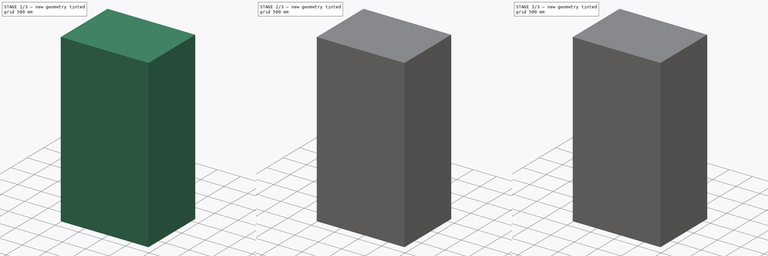
[diagram: build sequence overview — one tinted view per stage of 3, left to right]
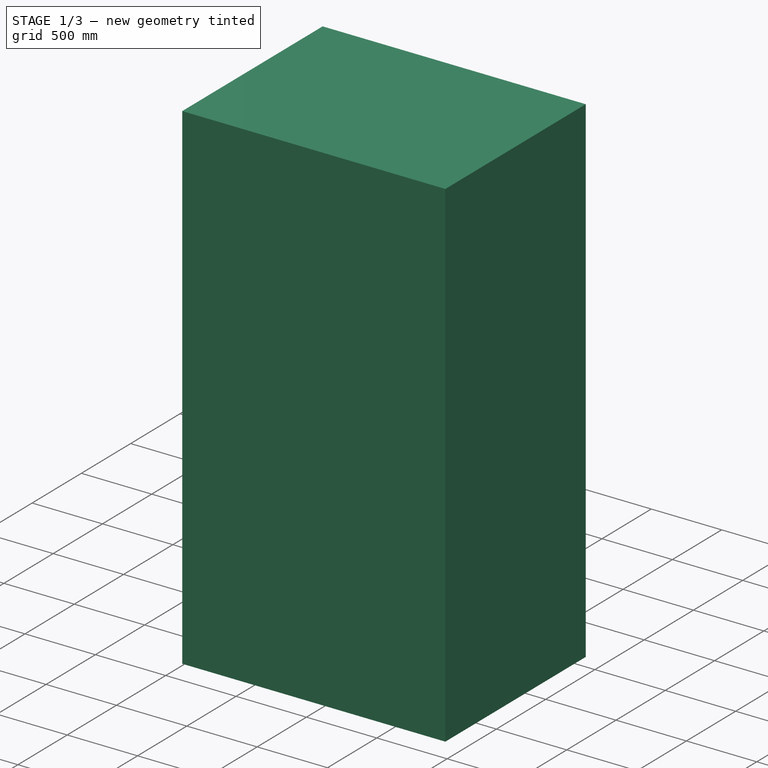
[diagram: stage 1 of 3 — iso view after this stage's code; geometry added in this stage tinted green]
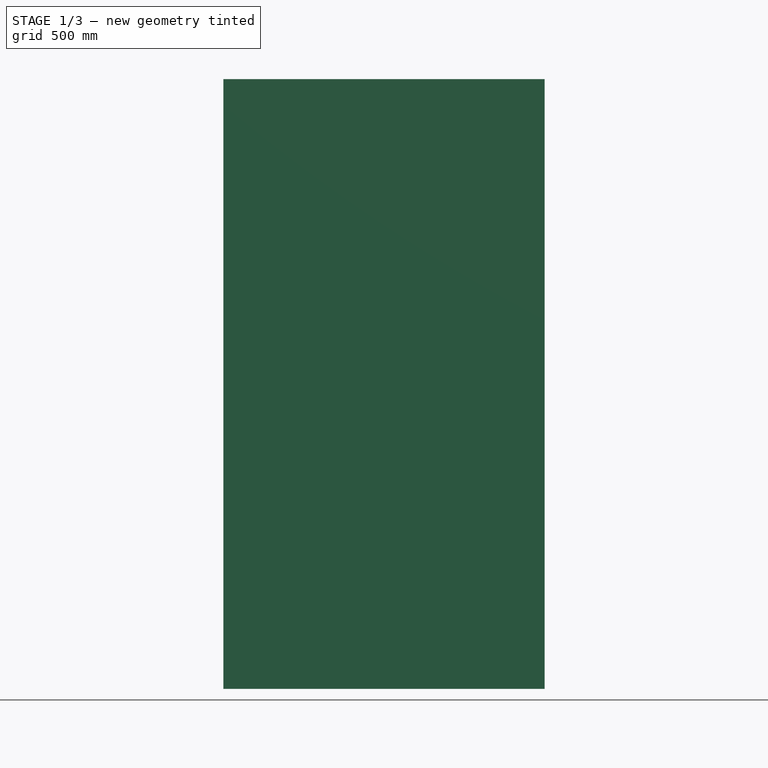
[diagram: stage 1 of 3 — front view after this stage's code; geometry added in this stage tinted green]
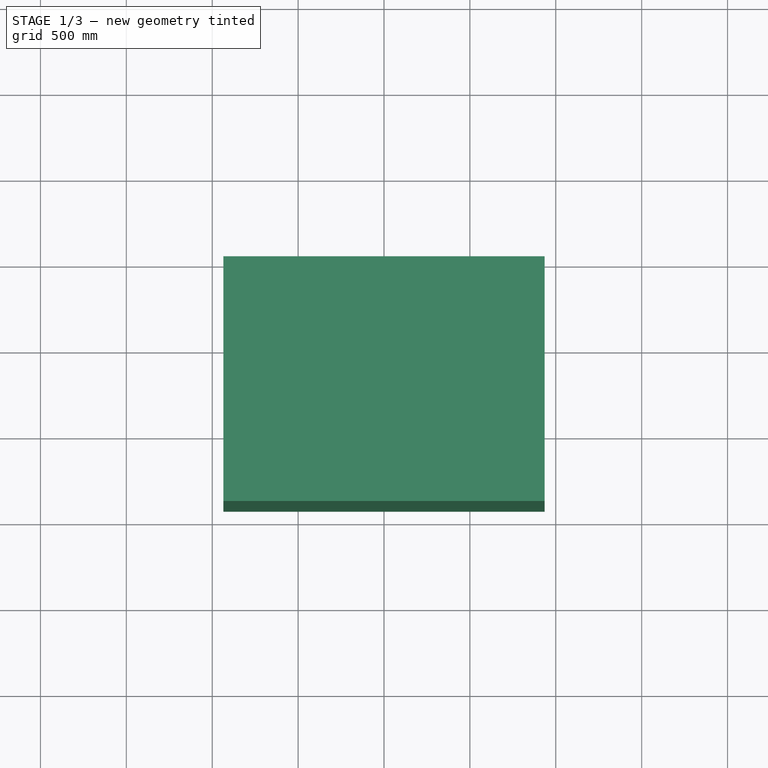
[diagram: stage 1 of 3 — top view after this stage's code; geometry added in this stage tinted green]
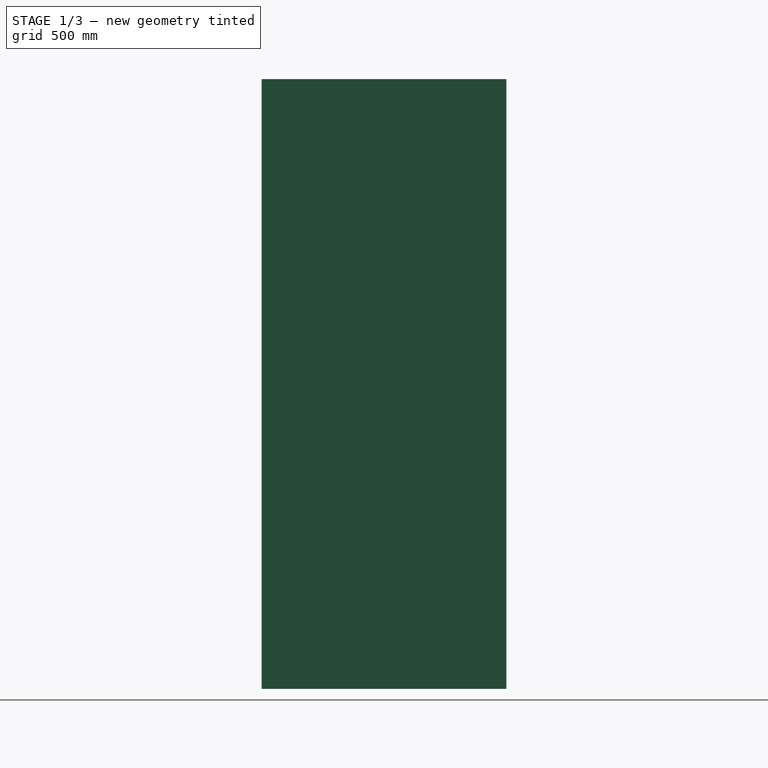
[diagram: stage 1 of 3 — right view after this stage's code; geometry added in this stage tinted green]
FCSTD DOCUMENT  (FreeCAD 1.1R41152 (Git))
Label: balcon
License: All rights reserved
LicenseURL: https://en.wikipedia.org/wiki/All_rights_reserved
objects: Sketcher::SketchObject×4, App::Point×2, PartDesign::Body×2, PartDesign::Pad×2, PartDesign::Pocket×2, PartDesign::SubShapeBinder×1, PartDesign::SubtractiveBox×1
note: 26 computed .brp shape members not serialized (recipe doc carries the construction recipe); baked Part::Feature solids carry a one-line shape summary decoded from their .brp

FEATURE [App::Point] Origin001  label="Начало координат"
  Role = Origin
FEATURE [Sketcher::SketchObject] Sketch  label="Боковой вид"
  ArcFitTolerance = 1e-06
  AttachmentSupport = -> [XZ_Plane]
  ExternalTypes = [0]
  FullyConstrained = false
  MakeInternals = false
  MapMode = 5
  Placement = pos=(0,0,0) rot=(1,0,0;1.5708rad)
  sketch-geometry (11):
    g0: LineSegment StartX=-543.175 StartY=-283.768 StartZ=0 EndX=-413.175 EndY=-283.768 EndZ=0
    g1: LineSegment StartX=-413.175 StartY=-283.768 StartZ=0 EndX=-413.175 EndY=-315.768 EndZ=0
    g2: LineSegment StartX=-413.175 StartY=-315.768 StartZ=0 EndX=-543.175 EndY=-315.768 EndZ=0
    g3: LineSegment StartX=-543.175 StartY=-315.768 StartZ=0 EndX=-543.175 EndY=-1215.77 EndZ=0
    g4: LineSegment StartX=-543.175 StartY=-1215.77 StartZ=0 EndX=726.825 EndY=-1215.77 EndZ=0
    g5: LineSegment StartX=726.825 StartY=-1215.77 StartZ=0 EndX=726.825 EndY=1734.23 EndZ=0
    g6: LineSegment StartX=726.825 StartY=1734.23 StartZ=0 EndX=-543.175 EndY=1734.23 EndZ=0
    g7: LineSegment StartX=-543.175 StartY=1734.23 StartZ=0 EndX=-543.175 EndY=-283.768 EndZ=0
    g8: LineSegment StartX=726.825 StartY=246.232 StartZ=0 EndX=796.825 EndY=246.232 EndZ=0
    g9: LineSegment StartX=796.825 StartY=246.232 StartZ=0 EndX=796.825 EndY=-65.7685 EndZ=0
    g10: LineSegment StartX=796.825 StartY=-65.7685 StartZ=0 EndX=726.825 EndY=-65.7685 EndZ=0
  constraints (34):
    c: Coincident(g0,g1)
    c: Coincident(g1,g2)
    c: Coincident(g2,g3)
    c: Coincident(g3,g4)
    c: Coincident(g4,g5)
    c: Vertical(g5)
    c: Coincident(g5,g6)
    c: Coincident(g6,g7)
    c: Coincident(g7,g0)
    c: Vertical(g2,g0)
    c: Horizontal(g0)
    c: Vertical(g1)
    c: Horizontal(g2)
    c: Vertical(g3)
    c: Vertical(g7)
    c: Horizontal(g6)
    c: Horizontal(g4)
    c: DistanceY(g5,g5) = 2950  'H1'
    c: DistanceX(g0,g0) = 130
    c: DistanceY(g3,g3) = 900
    c: DistanceY(g1,g1) = 32
    c: PointOnObject(g8,g5)
    c: Coincident(g8,g9)
    c: Coincident(g9,g10)
    c: Horizontal(g8)
    c: Vertical(g9)
    c: PointOnObject(g10,g5)
    c: Horizontal(g10)
    c: DistanceY(g4,g9) = 1150
    c: DistanceY(g9,g9) = 312
    c: Distance(g8,g7) = 1270  'L1'
    c: DistanceX(g8,g8) = 70
    c: DistanceX(g0,g10) = 1140
    c: DistanceY(g7,g7) = 2018
FEATURE [PartDesign::Body] Body  label="Тело"
  AllowCompound = false
  Group = -> [Sketch]
  Origin = -> Origin
FEATURE [App::Point] Origin003  label="Начало координат002"
  Role = Origin
FEATURE [Sketcher::SketchObject] Sketch001
  ArcFitTolerance = 1e-06
  AttachmentSupport = -> [XZ_Plane001]
  ExternalTypes = [0]
  FullyConstrained = true
  MakeInternals = false
  MapMode = 5
  Placement = pos=(0,0,0) rot=(1,0,0;1.5708rad)
  sketch-geometry (11):
    g0: LineSegment StartX=-635 StartY=1475 StartZ=0 EndX=-635 EndY=-1475 EndZ=0
    g1: LineSegment StartX=-635 StartY=-1475 StartZ=0 EndX=635 EndY=-1475 EndZ=0
    g2: LineSegment StartX=635 StartY=-1475 StartZ=0 EndX=635 EndY=1475 EndZ=0
    g3: LineSegment StartX=635 StartY=1475 StartZ=0 EndX=-635 EndY=1475 EndZ=0
    g4: LineSegment StartX=-935 StartY=1775 StartZ=0 EndX=-935 EndY=-1775 EndZ=0
    g5: LineSegment StartX=-935 StartY=-1775 StartZ=0 EndX=935 EndY=-1775 EndZ=0
    g6: LineSegment StartX=935 StartY=-1775 StartZ=0 EndX=935 EndY=1775 EndZ=0
    g7: LineSegment StartX=935 StartY=1775 StartZ=0 EndX=-935 EndY=1775 EndZ=0
    g8: GeomPoint X=0 Y=0 Z=0
    g9: LineSegment [constr] StartX=-635 StartY=1475 StartZ=0 EndX=-935 EndY=1475 EndZ=0
    g10: LineSegment [constr] StartX=-635 StartY=1775 StartZ=0 EndX=-635 EndY=1475 EndZ=0
  constraints (29):
    c: Coincident(g0,g1)
    c: Coincident(g1,g2)
    c: Coincident(g2,g3)
    c: Coincident(g3,g0)
    c: Vertical(g0)
    c: Vertical(g2)
    c: Horizontal(g1)
    c: Horizontal(g3)
    c: DistanceY(g2,g2) = 2950
    c: DistanceX(g3,g3) = 1270
    c: Coincident(g4,g5)
    c: Coincident(g5,g6)
    c: Coincident(g6,g7)
    c: Coincident(g7,g4)
    c: Vertical(g4)
    c: Vertical(g6)
    c: Horizontal(g5)
    c: Horizontal(g7)
    c: Symmetric(g4,g5,g8)
    c: Symmetric(g0,g1,g8)
    c: Coincident(g8,g-1)
    c: Coincident(g0,g9)
    c: PointOnObject(g9,g4)
    c: PointOnObject(g10,g7)
    c: Coincident(g10,g0)
    c: Equal(g9,g10)
    c: Horizontal(g9)
    c: Vertical(g10)
    c: DistanceX(g9,g9) = 300
FEATURE [PartDesign::Pad] Pad
  Direction = (0,-1,2e-16)
  Length = 1425
  Length2 = 10
  Placement = pos=(0,0,0) rot=(1,0,0;1.5708rad)
  Profile = -> Sketch001
  ReferenceAxis = -> Sketch001 [N_Axis]
  Refine = true
  Suppressed = false
  Type = 0
FEATURE [PartDesign::SubShapeBinder] Binder
  BindCopyOnChange = 0
  BindMode = 0
  ClaimChildren = false
  Context = -> Body001 [Binder.]
  Fuse = false
  MakeFace = true
  OffsetFill = false
  OffsetIntersection = false
  OffsetJoinType = 0
  OffsetOpenResult = false
  PartialLoad = false
  Refine = true
  Relative = true
  Support = -> [Pad[Edge7,Edge10,Edge4,Edge12]]
  _Version = 2
FEATURE [PartDesign::Pad] Pad001
  BaseFeature = -> Pad
  Direction = (0,1,-3e-16)
  Length = 200
  Length2 = 10
  Placement = pos=(0,0,0) rot=(1,0,0;1.5708rad)
  Profile = -> Binder
  Refine = true
  Suppressed = false
  Type = 0
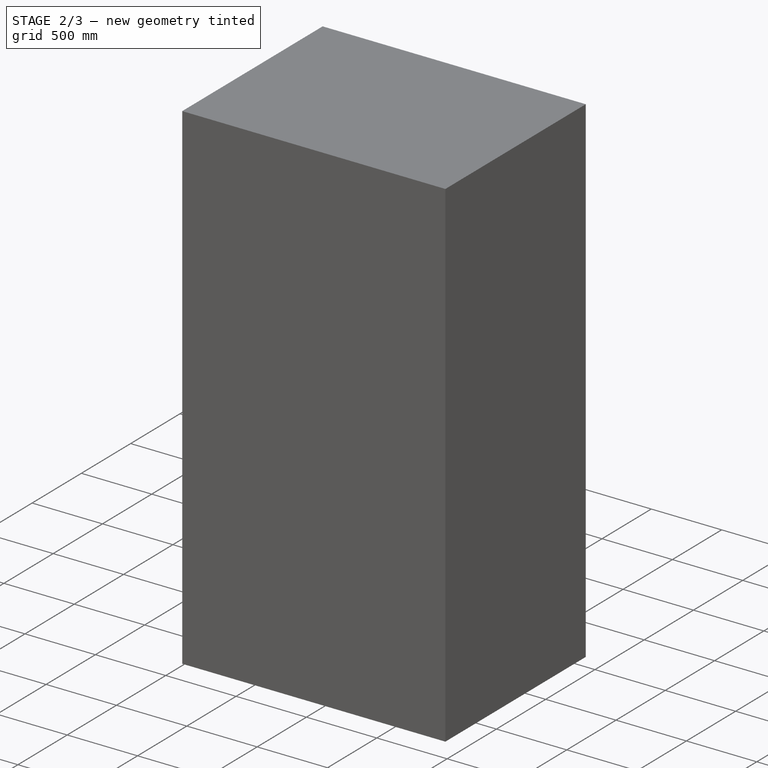
[diagram: stage 2 of 3 — iso view after this stage's code; geometry added in this stage tinted green]
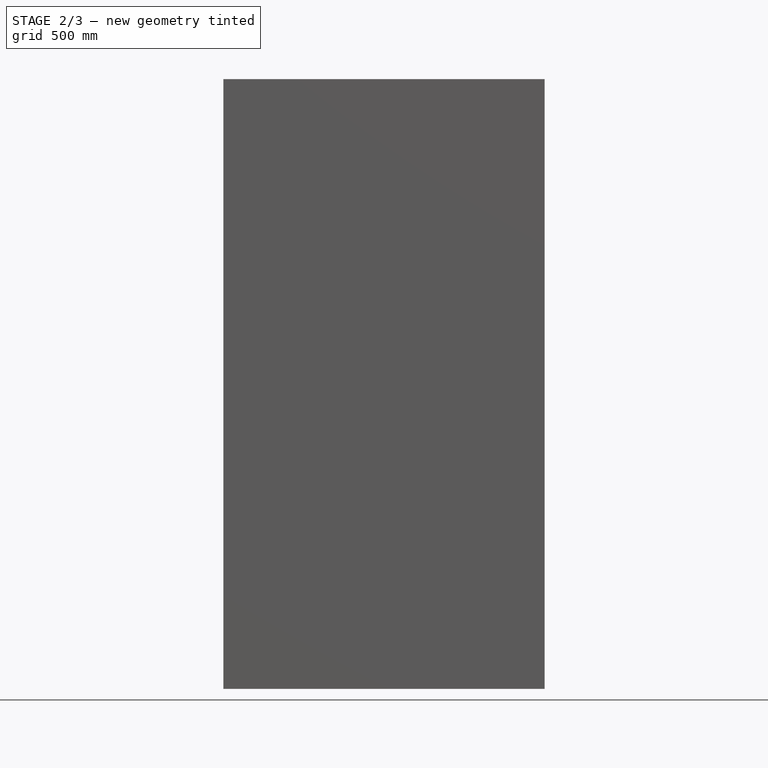
[diagram: stage 2 of 3 — front view after this stage's code; geometry added in this stage tinted green]
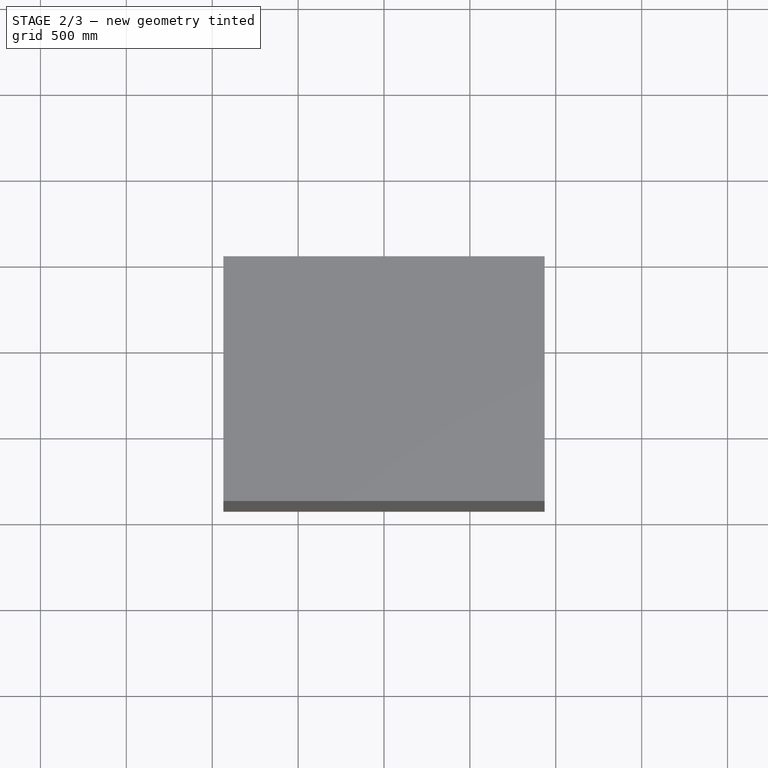
[diagram: stage 2 of 3 — top view after this stage's code; geometry added in this stage tinted green]
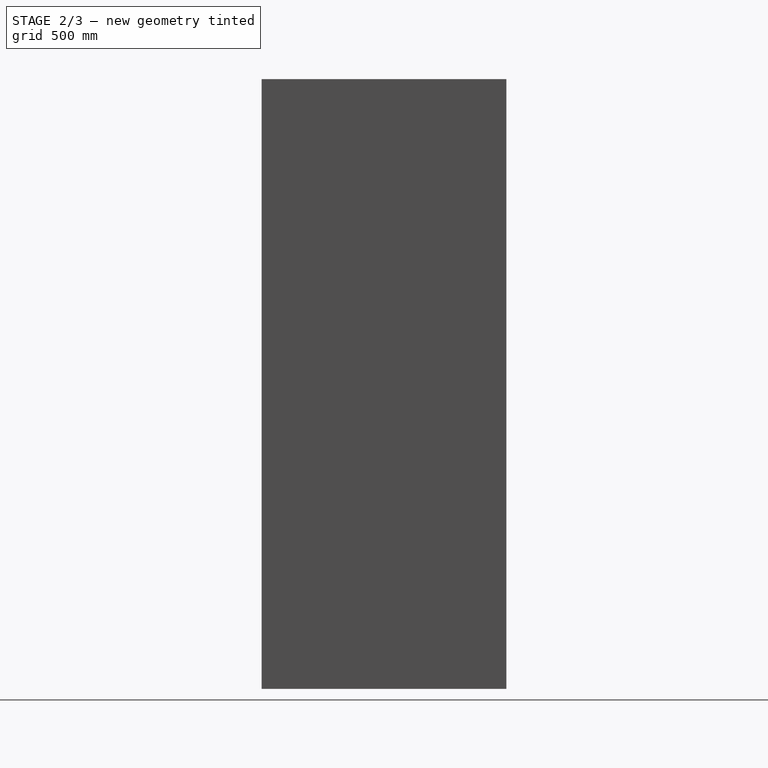
[diagram: stage 2 of 3 — right view after this stage's code; geometry added in this stage tinted green]
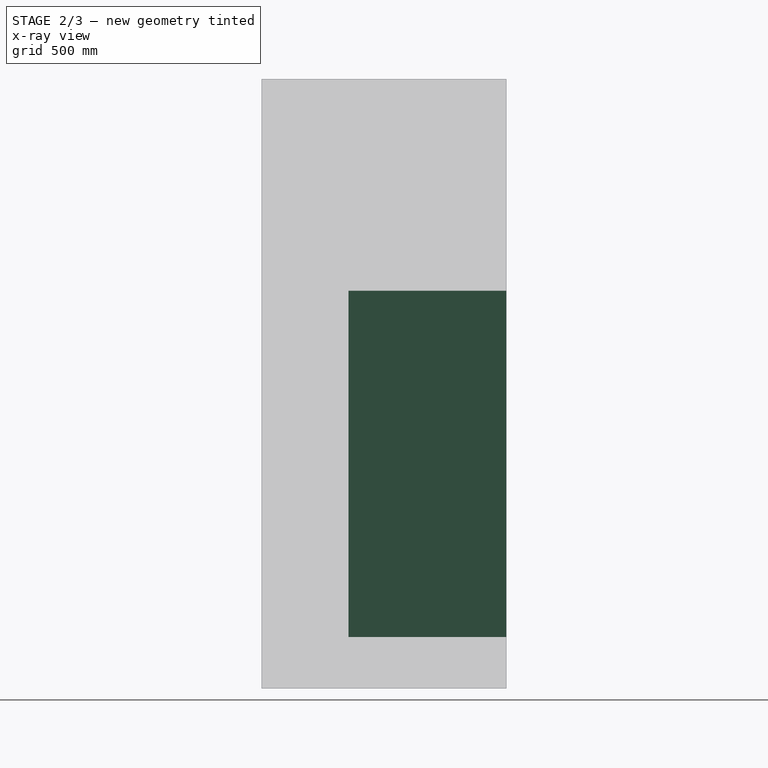
[diagram: stage 2 of 3 — x-ray composite at the right view; earlier geometry ghosted, this stage's added geometry solid]
FEATURE [Sketcher::SketchObject] Sketch002
  ArcFitTolerance = 1e-06
  AttachmentSupport = -> [Pad001]
  ExternalGeometry = -> [Pad001]
  ExternalTypes = [0]
  FullyConstrained = true
  MakeInternals = false
  MapMode = 5
  Placement = pos=(0,0,0) rot=(-1,0,0;1.5708rad)
  sketch-geometry (4):
    g0: LineSegment StartX=-635 StartY=1475 StartZ=0 EndX=-700 EndY=1475 EndZ=0
    g1: LineSegment StartX=-700 StartY=1475 StartZ=0 EndX=-700 EndY=-543 EndZ=0
    g2: LineSegment StartX=-700 StartY=-543 StartZ=0 EndX=-635 EndY=-543 EndZ=0
    g3: LineSegment StartX=-635 StartY=-543 StartZ=0 EndX=-635 EndY=1475 EndZ=0
  constraints (11):
    c: Coincident(g0,g1)
    c: Coincident(g1,g2)
    c: PointOnObject(g2,g-3)
    c: Horizontal(g2)
    c: Coincident(g2,g3)
    c: Coincident(g3,g0)
    c: Coincident(g0,g-3)
    c: Vertical(g1)
    c: Horizontal(g0)
    c: DistanceY(g1,g1) = 2018
    c: DistanceX(g0,g0) = 65
FEATURE [PartDesign::Pocket] Pocket
  BaseFeature = -> Pad001
  Direction = (0,-1,0)
  Length = 920
  Length2 = 5
  Placement = pos=(0,0,0) rot=(1,0,0;1.5708rad)
  Profile = -> Sketch002
  ReferenceAxis = -> Sketch002 [N_Axis]
  Refine = true
  Suppressed = false
  Type = 0
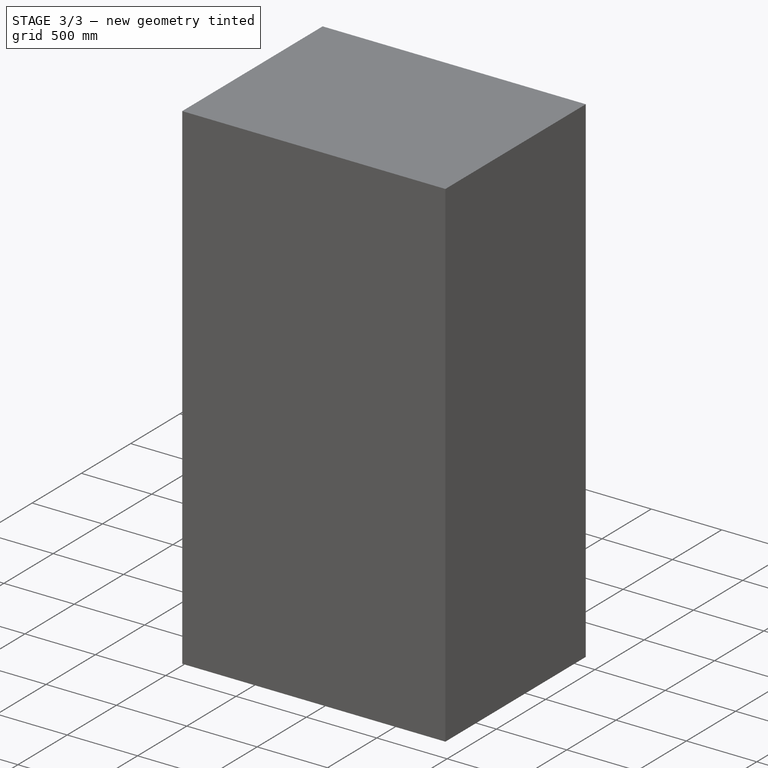
[diagram: stage 3 of 3 — iso view after this stage's code; geometry added in this stage tinted green]
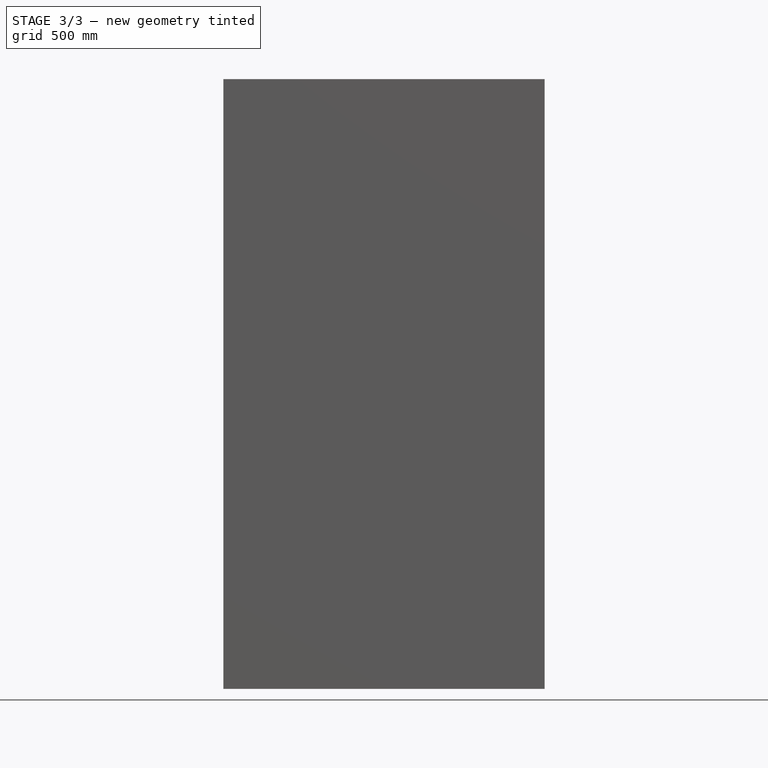
[diagram: stage 3 of 3 — front view after this stage's code; geometry added in this stage tinted green]
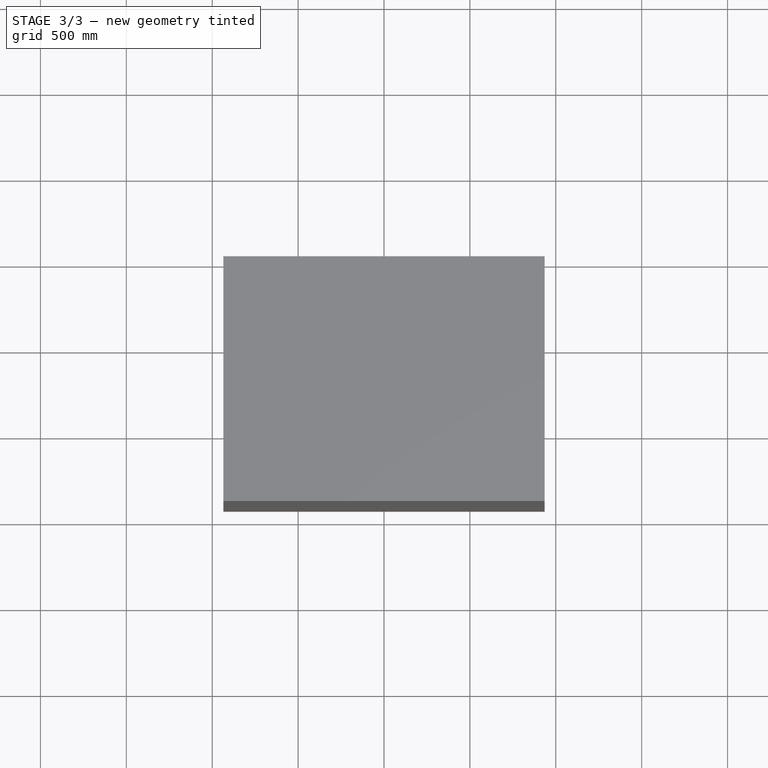
[diagram: stage 3 of 3 — top view after this stage's code; geometry added in this stage tinted green]
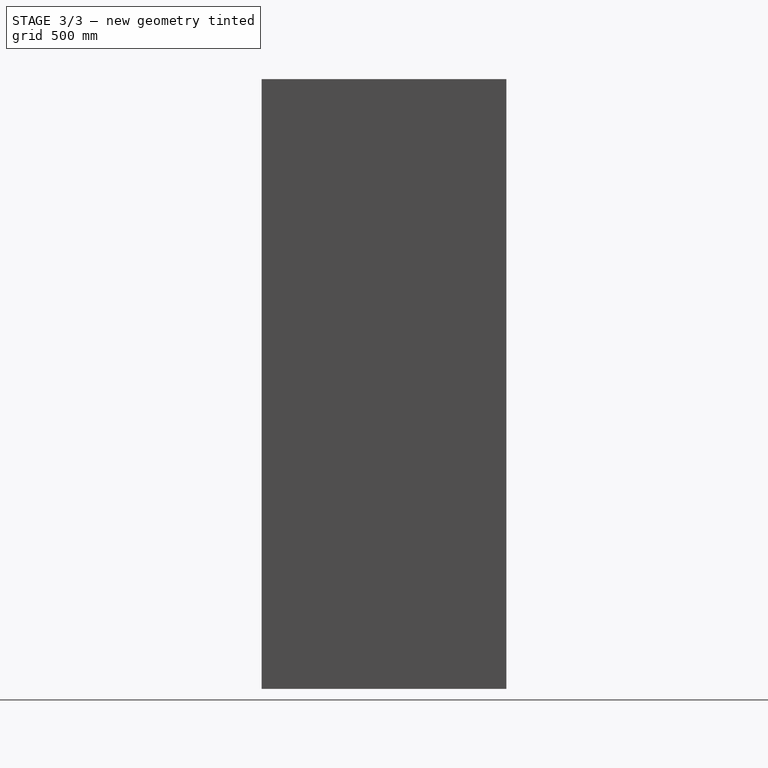
[diagram: stage 3 of 3 — right view after this stage's code; geometry added in this stage tinted green]
FEATURE [PartDesign::SubtractiveBox] Box
  AttacherType = Attacher::AttachEngine3D
  AttachmentOffset = pos=(0,535,-70) rot=(0,0,1;0rad)
  AttachmentSupport = -> [Pocket]
  BaseFeature = -> Pocket
  Height = 70
  Length = 290
  MapMode = 5
  Placement = pos=(705,-535,1.55e-14) rot=(0.707107,0,-0.707107;3.14159rad)
  Refine = true
  Suppressed = false
  Width = 310
FEATURE [Sketcher::SketchObject] Sketch003
  ArcFitTolerance = 1e-06
  AttachmentSupport = -> [Box]
  ExternalGeometry = -> [Box]
  ExternalTypes = [0]
  FullyConstrained = true
  MakeInternals = false
  MapMode = 5
  Placement = pos=(635,-535,0) rot=(0.707107,0,-0.707107;3.14159rad)
  sketch-geometry (3):
    g0: Circle CenterX=-845 CenterY=155 CenterZ=0 NormalX=0 NormalY=0 NormalZ=1 AngleXU=0 Radius=75
    g1: LineSegment [constr] StartX=1.55e-14 StartY=310 StartZ=0 EndX=-845 EndY=155 EndZ=0
    g2: LineSegment [constr] StartX=-845 StartY=155 StartZ=0 EndX=0 EndY=0 EndZ=0
  constraints (7):
    c: Diameter(g0) = 150
    c: Distance(g0,g-3) = 770
    c: Coincident(g1,g0)
    c: Coincident(g1,g2)
    c: Coincident(g2,g-1)
    c: Coincident(g-3,g1)
    c: Equal(g1,g2)
FEATURE [PartDesign::Pocket] Pocket001
  BaseFeature = -> Box
  Direction = (1,0,0)
  Length = 100
  Length2 = 5
  Placement = pos=(705,-535,1.55e-14) rot=(0.707107,0,-0.707107;3.14159rad)
  Profile = -> Sketch003
  ReferenceAxis = -> Sketch003 [N_Axis]
  Refine = true
  Suppressed = false
  Type = 0
FEATURE [PartDesign::Body] Body001  label="Тело001"
  AllowCompound = false
  Group = -> [Sketch001,Pad,Binder,Pad001,Sketch002,Pocket,Box,Sketch003,Pocket001]
  Origin = -> Origin002
  Tip = -> Pocket001
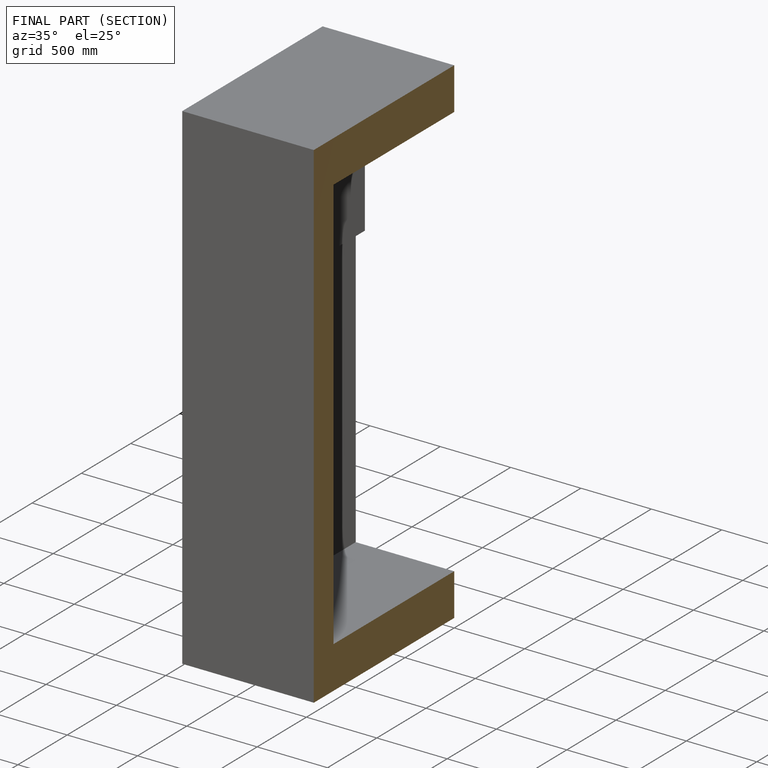
[diagram: finished part — half-section view (interior)]
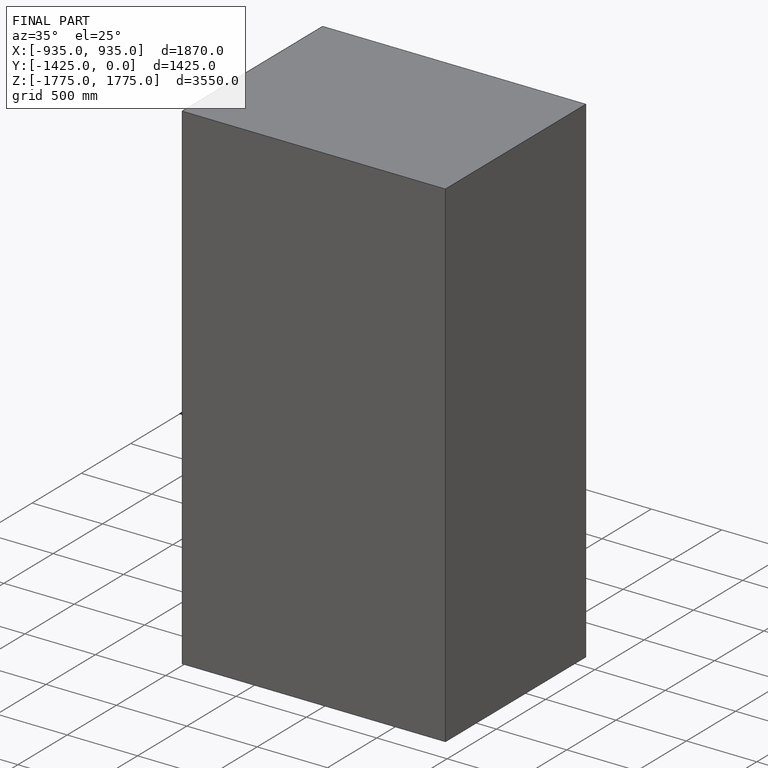
[diagram: finished part — iso view with bounding-box wireframe]
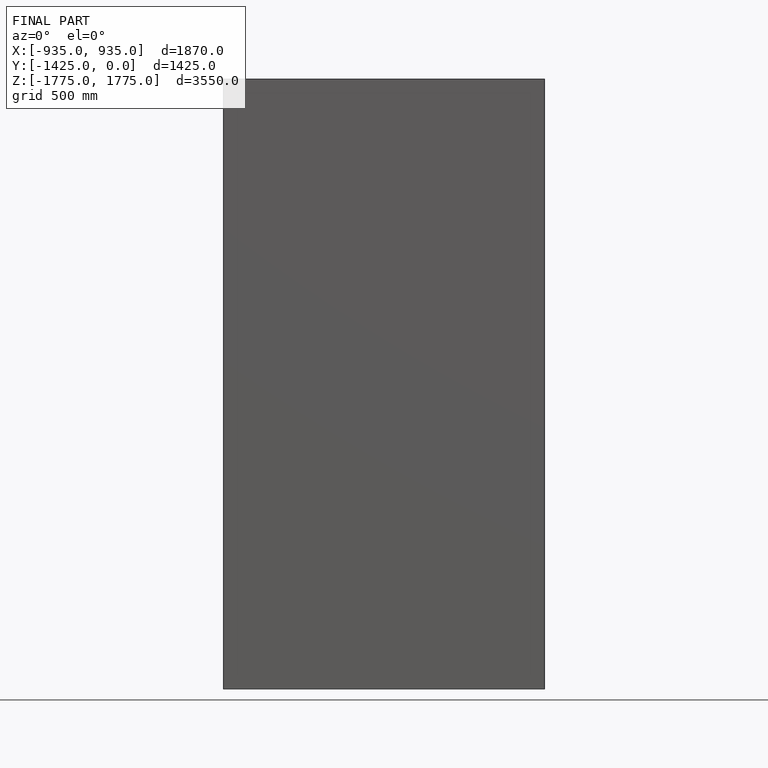
[diagram: finished part — front view with bounding-box wireframe]
